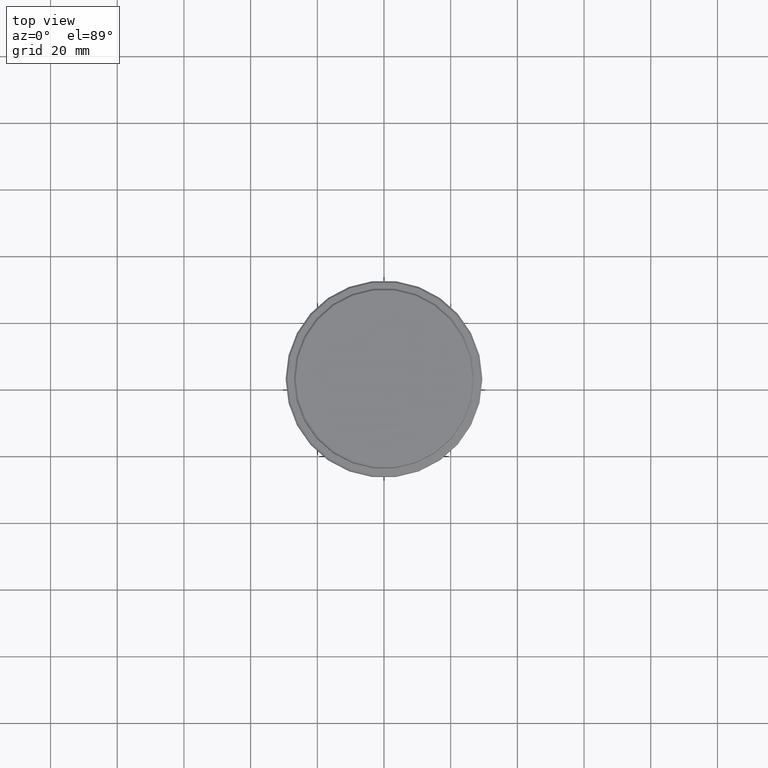
[diagram: clean part render]
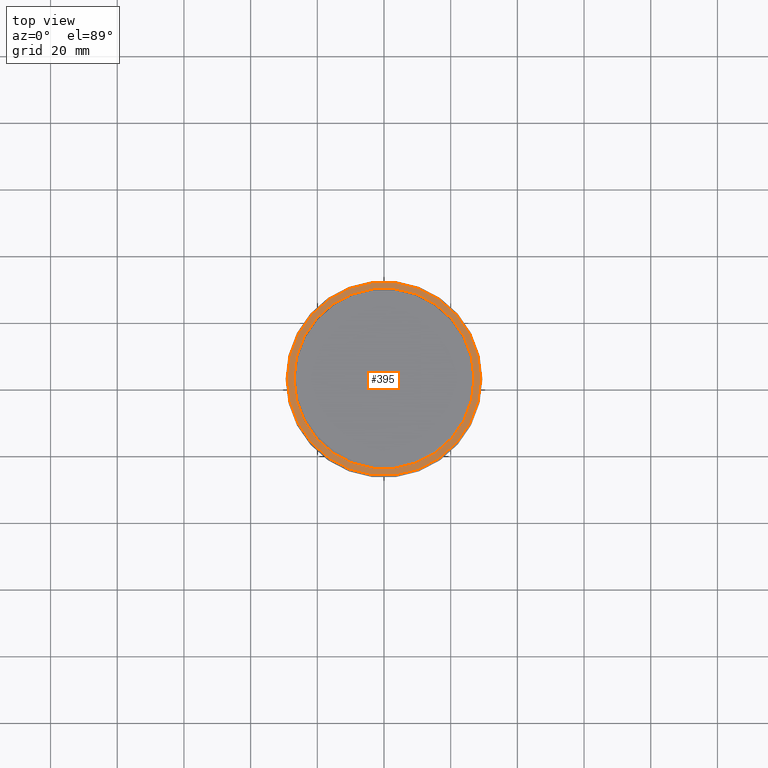
[diagram: same view with one face highlighted and labeled with its STEP entity id]
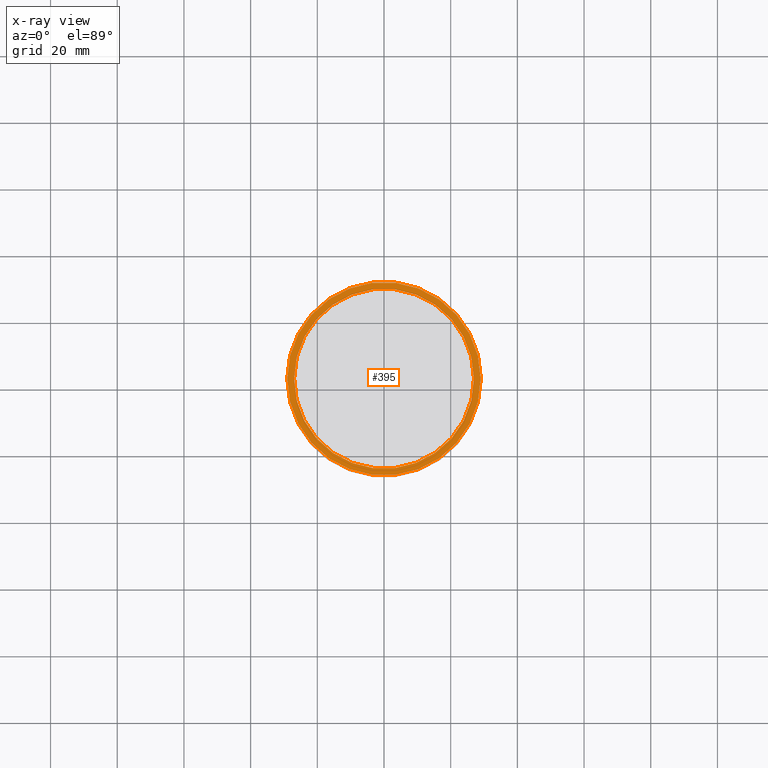
[diagram: x-ray of the same camera — body ghosted, the highlighted face saturated]
A machine part, top view. The second image highlights one B-rep face of the part: STEP entity #395.
The next image is the same camera in x-ray: the body ghosted, the highlighted face saturated — about 0% of this face is hidden behind the body in this view.
In plain terms, the highlighted planar face has unit normal (0, -0, 1).
Its self-contained STEP definition (entity closure, byte-faithful):
#48 = CARTESIAN_POINT ( 'NONE',  ( 28.99999999999999645, 3.582091887506007817E-15, -12.00000000000000355 ) ) ;
#75 = DIRECTION ( 'NONE',  ( -0.000000000000000000, -0.000000000000000000, 1.000000000000000000 ) ) ;
#84 = CIRCLE ( 'NONE', #1023, 26.99999999999999645 ) ;
#100 = CIRCLE ( 'NONE', #586, 28.99999999999999645 ) ;
#130 = ORIENTED_EDGE ( 'NONE', *, *, #445, .T. ) ;
#173 = DIRECTION ( 'NONE',  ( -0.000000000000000000, -0.000000000000000000, 1.000000000000000000 ) ) ;
#188 = PLANE ( 'NONE',  #191 ) ;
#191 = AXIS2_PLACEMENT_3D ( 'NONE', #940, #1265, #629 ) ;
#227 = CARTESIAN_POINT ( 'NONE',  ( 0.000000000000000000, 0.000000000000000000, -12.00000000000000355 ) ) ;
#242 = CARTESIAN_POINT ( 'NONE',  ( 26.99999999999999645, 0.000000000000000000, -12.00000000000000355 ) ) ;
#257 = EDGE_LOOP ( 'NONE', ( #896, #1343 ) ) ;
#318 = AXIS2_PLACEMENT_3D ( 'NONE', #615, #75, #707 ) ;
#395 = ADVANCED_FACE ( 'NONE', ( #1175, #1385 ), #188, .T. ) ;
#445 = EDGE_CURVE ( 'NONE', #1034, #543, #84, .T. ) ;
#494 = DIRECTION ( 'NONE',  ( 0.000000000000000000, 0.000000000000000000, -1.000000000000000000 ) ) ;
#500 = CIRCLE ( 'NONE', #318, 28.99999999999999645 ) ;
#505 = EDGE_CURVE ( 'NONE', #547, #1194, #500, .T. ) ;
#543 = VERTEX_POINT ( 'NONE', #1416 ) ;
#547 = VERTEX_POINT ( 'NONE', #581 ) ;
#581 = CARTESIAN_POINT ( 'NONE',  ( -28.99999999999999645, 0.000000000000000000, -12.00000000000000355 ) ) ;
#586 = AXIS2_PLACEMENT_3D ( 'NONE', #826, #173, #1040 ) ;
#601 = EDGE_CURVE ( 'NONE', #543, #1034, #1354, .T. ) ;
#615 = CARTESIAN_POINT ( 'NONE',  ( 0.000000000000000000, 0.000000000000000000, -12.00000000000000355 ) ) ;
#629 = DIRECTION ( 'NONE',  ( 1.000000000000000000, 0.000000000000000000, 0.000000000000000000 ) ) ;
#660 = DIRECTION ( 'NONE',  ( 1.000000000000000000, 0.000000000000000000, 0.000000000000000000 ) ) ;
#670 = DIRECTION ( 'NONE',  ( 0.000000000000000000, 0.000000000000000000, -1.000000000000000000 ) ) ;
#707 = DIRECTION ( 'NONE',  ( 1.000000000000000000, 0.000000000000000000, 0.000000000000000000 ) ) ;
#738 = EDGE_LOOP ( 'NONE', ( #130, #851 ) ) ;
#810 = EDGE_CURVE ( 'NONE', #1194, #547, #100, .T. ) ;
#823 = CARTESIAN_POINT ( 'NONE',  ( 0.000000000000000000, 0.000000000000000000, -12.00000000000000355 ) ) ;
#826 = CARTESIAN_POINT ( 'NONE',  ( 0.000000000000000000, 0.000000000000000000, -12.00000000000000355 ) ) ;
#828 = DIRECTION ( 'NONE',  ( 1.000000000000000000, 0.000000000000000000, 0.000000000000000000 ) ) ;
#851 = ORIENTED_EDGE ( 'NONE', *, *, #601, .T. ) ;
#896 = ORIENTED_EDGE ( 'NONE', *, *, #505, .T. ) ;
#940 = CARTESIAN_POINT ( 'NONE',  ( 0.000000000000000000, 26.49999999999999645, -12.00000000000000355 ) ) ;
#1023 = AXIS2_PLACEMENT_3D ( 'NONE', #823, #494, #828 ) ;
#1034 = VERTEX_POINT ( 'NONE', #242 ) ;
#1040 = DIRECTION ( 'NONE',  ( 1.000000000000000000, 0.000000000000000000, 0.000000000000000000 ) ) ;
#1175 = FACE_OUTER_BOUND ( 'NONE', #257, .T. ) ;
#1194 = VERTEX_POINT ( 'NONE', #48 ) ;
#1205 = AXIS2_PLACEMENT_3D ( 'NONE', #227, #670, #660 ) ;
#1265 = DIRECTION ( 'NONE',  ( 0.000000000000000000, -0.000000000000000000, 1.000000000000000000 ) ) ;
#1343 = ORIENTED_EDGE ( 'NONE', *, *, #810, .T. ) ;
#1354 = CIRCLE ( 'NONE', #1205, 26.99999999999999645 ) ;
#1385 = FACE_BOUND ( 'NONE', #738, .T. ) ;
#1416 = CARTESIAN_POINT ( 'NONE',  ( -26.99999999999999645, 3.306546357697853339E-15, -12.00000000000000355 ) ) ;